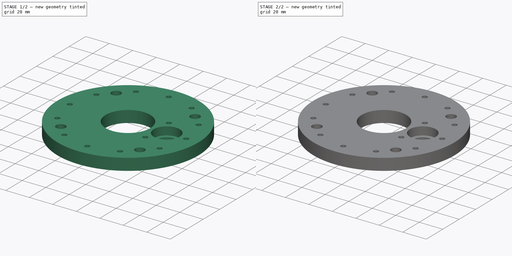
[diagram: build sequence overview — one tinted view per stage of 2, left to right]
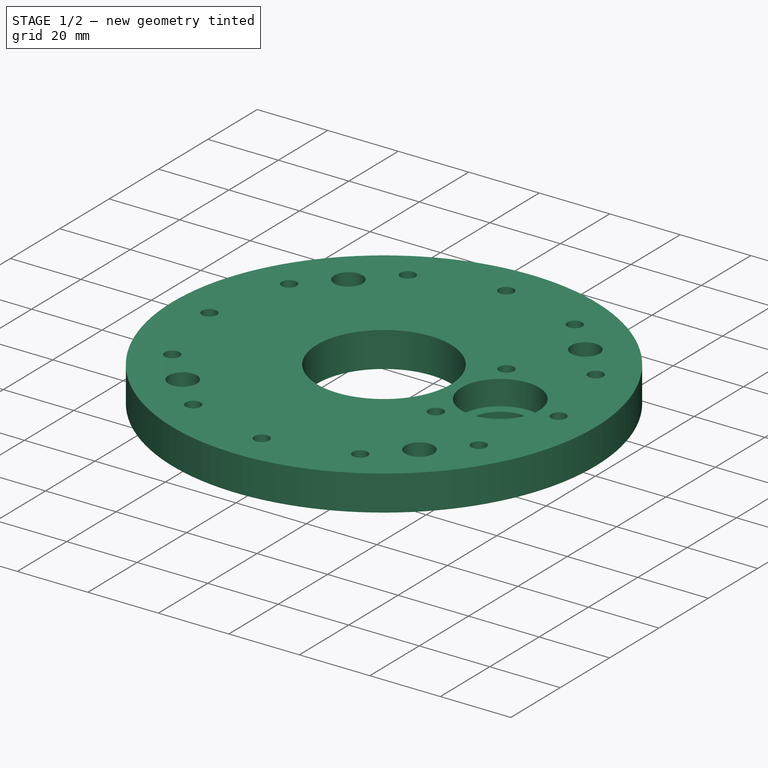
[diagram: stage 1 of 2 — iso view after this stage's code; geometry added in this stage tinted green]
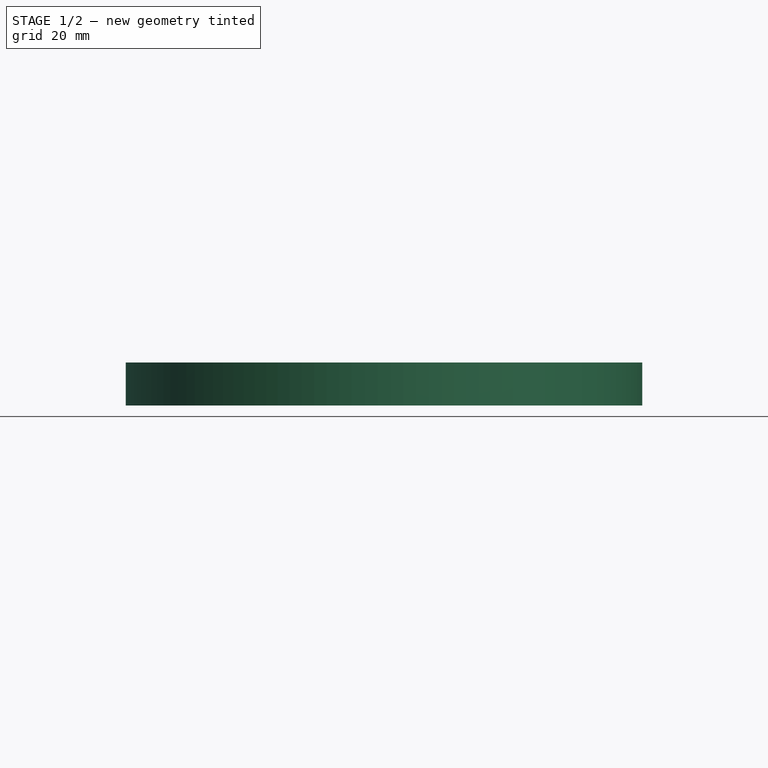
[diagram: stage 1 of 2 — front view after this stage's code; geometry added in this stage tinted green]
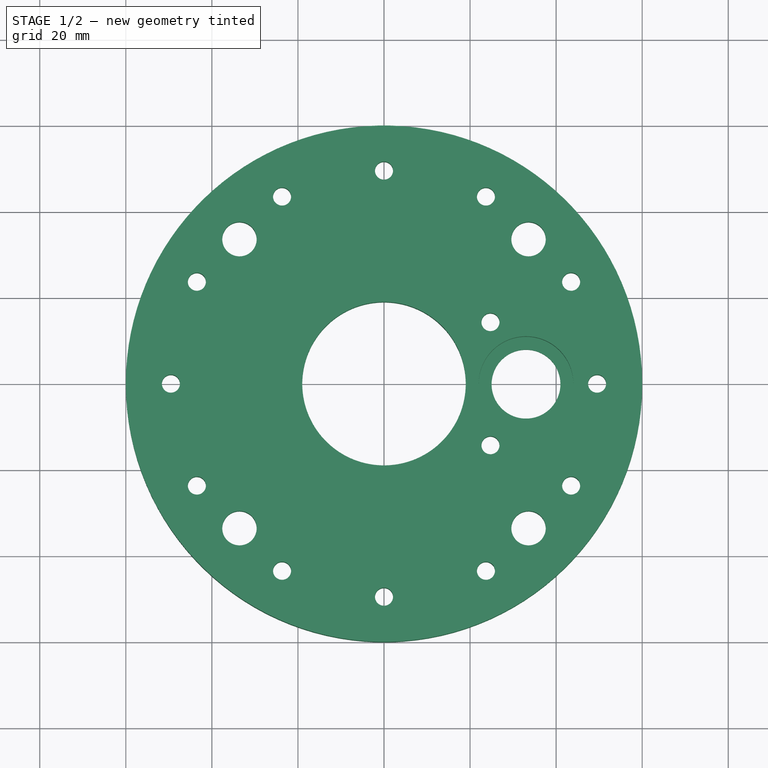
[diagram: stage 1 of 2 — top view after this stage's code; geometry added in this stage tinted green]
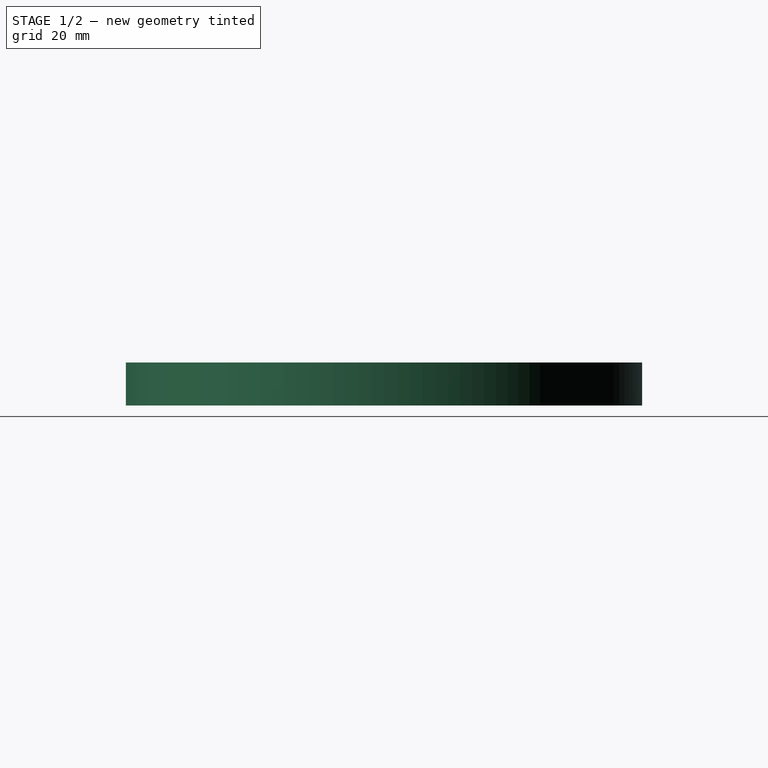
[diagram: stage 1 of 2 — right view after this stage's code; geometry added in this stage tinted green]
FCSTD DOCUMENT  (FreeCAD 0.19R24276 (Git))
Label: Z-axis_bottom_plate
License: All rights reserved
LicenseURL: http://en.wikipedia.org/wiki/All_rights_reserved
objects: Sketcher::SketchObject×2, PartDesign::Pad×1, PartDesign::Pocket×1, PartDesign::Chamfer×1, PartDesign::Body×1, Part::Part2DObjectPython×1
note: 10 computed .brp shape members not serialized (recipe doc carries the construction recipe); baked Part::Feature solids carry a one-line shape summary decoded from their .brp

FEATURE [Sketcher::SketchObject] Sketch
  FullyConstrained = true
  MapMode = 5
  Support = -> [XY_Plane]
  sketch-geometry (36):
    g0: Circle CenterX=24.74 CenterY=14.3067 CenterZ=0 NormalX=0 NormalY=0 NormalZ=1 AngleXU=0 Radius=2.1
    g1: Circle CenterX=24.74 CenterY=-14.3067 CenterZ=0 NormalX=0 NormalY=0 NormalZ=1 AngleXU=0 Radius=2.1
    g2: LineSegment StartX=24.74 StartY=14.3067 StartZ=0 EndX=33 EndY=0 EndZ=0
    g3: LineSegment StartX=33 StartY=0 StartZ=0 EndX=24.74 EndY=-14.3067 EndZ=0
    g4: LineSegment StartX=33 StartY=0 StartZ=0 EndX=49.52 EndY=0 EndZ=0
    g5: Circle CenterX=0 CenterY=0 CenterZ=0 NormalX=0 NormalY=0 NormalZ=1 AngleXU=0 Radius=19
    g6: Circle CenterX=33 CenterY=0 CenterZ=0 NormalX=0 NormalY=0 NormalZ=1 AngleXU=0 Radius=8
    g7: Circle CenterX=49.52 CenterY=0 CenterZ=0 NormalX=0 NormalY=0 NormalZ=1 AngleXU=0 Radius=2.1
    g8: LineSegment StartX=-33.5876 StartY=-33.5876 StartZ=0 EndX=33.5876 EndY=-33.5876 EndZ=0
    g9: LineSegment StartX=33.5876 StartY=-33.5876 StartZ=0 EndX=33.5876 EndY=33.5876 EndZ=0
    g10: LineSegment StartX=33.5876 StartY=33.5876 StartZ=0 EndX=-33.5876 EndY=33.5876 EndZ=0
    g11: LineSegment StartX=-33.5876 StartY=33.5876 StartZ=0 EndX=-33.5876 EndY=-33.5876 EndZ=0
    g12: Circle CenterX=-33.5876 CenterY=33.5876 CenterZ=0 NormalX=0 NormalY=0 NormalZ=1 AngleXU=0 Radius=4
    g13: Circle CenterX=-33.5876 CenterY=-33.5876 CenterZ=0 NormalX=0 NormalY=0 NormalZ=1 AngleXU=0 Radius=4
    g14: Circle CenterX=33.5876 CenterY=-33.5876 CenterZ=0 NormalX=0 NormalY=0 NormalZ=1 AngleXU=0 Radius=4
    g15: Circle CenterX=33.5876 CenterY=33.5876 CenterZ=0 NormalX=0 NormalY=0 NormalZ=1 AngleXU=0 Radius=4
    g16: LineSegment StartX=-43.4871 StartY=-23.6881 StartZ=0 EndX=-23.6881 EndY=-43.4871 EndZ=0
    g17: LineSegment StartX=-23.6881 StartY=-43.4871 StartZ=0 EndX=43.4871 EndY=23.6881 EndZ=0
    g18: LineSegment StartX=43.4871 StartY=23.6881 StartZ=0 EndX=23.6881 EndY=43.4871 EndZ=0
    g19: LineSegment StartX=23.6881 StartY=43.4871 StartZ=0 EndX=-43.4871 EndY=-23.6881 EndZ=0
    g20: Circle CenterX=0 CenterY=0 CenterZ=0 NormalX=0 NormalY=0 NormalZ=1 AngleXU=0 Radius=60
    g21: Circle CenterX=-49.52 CenterY=0 CenterZ=0 NormalX=0 NormalY=0 NormalZ=1 AngleXU=0 Radius=2.1
    g22: Circle CenterX=0 CenterY=49.52 CenterZ=0 NormalX=0 NormalY=0 NormalZ=1 AngleXU=0 Radius=2.1
    g23: Circle CenterX=0 CenterY=-49.52 CenterZ=0 NormalX=0 NormalY=0 NormalZ=1 AngleXU=0 Radius=2.1
    g24: LineSegment StartX=-43.4871 StartY=23.6881 StartZ=0 EndX=-23.6881 EndY=43.4871 EndZ=0
    g25: LineSegment StartX=-23.6881 StartY=43.4871 StartZ=0 EndX=43.4871 EndY=-23.6881 EndZ=0
    g26: LineSegment StartX=43.4871 StartY=-23.6881 StartZ=0 EndX=23.6881 EndY=-43.4871 EndZ=0
    g27: LineSegment StartX=23.6881 StartY=-43.4871 StartZ=0 EndX=-43.4871 EndY=23.6881 EndZ=0
    g28: Circle CenterX=-43.4871 CenterY=23.6881 CenterZ=0 NormalX=0 NormalY=0 NormalZ=1 AngleXU=0 Radius=2.1
    g29: Circle CenterX=-23.6881 CenterY=43.4871 CenterZ=0 NormalX=0 NormalY=0 NormalZ=1 AngleXU=0 Radius=2.1
    g30: Circle CenterX=23.6881 CenterY=-43.4871 CenterZ=0 NormalX=0 NormalY=0 NormalZ=1 AngleXU=0 Radius=2.1
    g31: Circle CenterX=43.4871 CenterY=-23.6881 CenterZ=0 NormalX=0 NormalY=0 NormalZ=1 AngleXU=0 Radius=2.1
    g32: Circle CenterX=23.6881 CenterY=43.4871 CenterZ=0 NormalX=0 NormalY=0 NormalZ=1 AngleXU=0 Radius=2.1
    g33: Circle CenterX=43.4871 CenterY=23.6881 CenterZ=0 NormalX=0 NormalY=0 NormalZ=1 AngleXU=0 Radius=2.1
    g34: Circle CenterX=-43.4871 CenterY=-23.6881 CenterZ=0 NormalX=0 NormalY=0 NormalZ=1 AngleXU=0 Radius=2.1
    g35: Circle CenterX=-23.6881 CenterY=-43.4871 CenterZ=0 NormalX=0 NormalY=0 NormalZ=1 AngleXU=0 Radius=2.1
  constraints (88):
    c: Equal(g0,g1)
    c: Radius(g1) = 2.1
    c: Coincident(g2,g3)
    c: Angle(g2,g3) = 2.0944
    c: Coincident(g2,g4)
    c: Coincident(g3,g1)
    c: Coincident(g0,g2)
    c: Angle(g3,g4) = 2.0944
    c: Radius(g5) = 19
    c: Radius(g6) = 8
    c: DistanceX(g6) = 33
    c: PointOnObject(g6,g-1)
    c: Equal(g2,g4)
    c: Equal(g3,g4)
    c: Coincident(g2,g6)
    c: Coincident(g7,g4)
    c: DistanceX(g7) = 49.52
    c: Equal(g7,g0)
    c: PointOnObject(g7,g-1)
    c: Coincident(g8,g9)
    c: Coincident(g9,g10)
    c: Coincident(g10,g11)
    c: Coincident(g11,g8)
    c: Horizontal(g8)
    c: Horizontal(g10)
    c: Vertical(g9)
    c: Vertical(g11)
    c: Equal(g12,g15)
    c: Equal(g15,g13)
    c: Equal(g13,g14)
    c: Radius(g15) = 4
    c: Coincident(g13,g8)
    c: Coincident(g9,g15)
    c: Coincident(g12,g10)
    c: Equal(g10,g11)
    c: Coincident(g17,g18)
    c: Coincident(g18,g19)
    c: Coincident(g16,g19)
    c: PointOnObject(g15,g18)
    c: PointOnObject(g13,g16)
    c: Coincident(g16,g17)
    c: Perpendicular(g18,g19)
    c: Perpendicular(g17,g16)
    c: Perpendicular(g16,g19)
    c: Distance(g16,g13) = 14
    c: Distance(g16) = 28
    c: Distance(g17,g15) = 14
    c: Radius(g20) = 60
    c: Coincident(g5,g20)
    c: Coincident(g5,g-1)
    c: Symmetric(g13,g15,g5)
    c: Coincident(g8,g14)
    c: Distance(g5,g15) = 47.5
    c: Symmetric(g21,g7,g5)
    c: Equal(g21,g7)
    c: Symmetric(g23,g22,g5)
    c: Equal(g23,g21)
    c: Equal(g21,g22)
    c: DistanceY(g22) = 49.52
    c: PointOnObject(g23,g-2)
    c: Coincident(g24,g25)
    c: Coincident(g25,g26)
    c: Coincident(g26,g27)
    c: Coincident(g27,g24)
    c: Perpendicular(g27,g24)
    c: Perpendicular(g25,g24)
    c: Perpendicular(g27,g26)
    c: PointOnObject(g14,g26)
    c: Distance(g26,g14) = 14
    c: Distance(g26) = 28
    c: PointOnObject(g12,g24)
    c: Distance(g12,g24) = 14
    c: Equal(g31,g30)
    c: Equal(g30,g28)
    c: Equal(g28,g29)
    c: Equal(g29,g21)
    c: Coincident(g24,g28)
    c: Coincident(g29,g24)
    c: Coincident(g30,g26)
    c: Coincident(g25,g31)
    c: Equal(g35,g34)
    c: Equal(g34,g32)
    c: Equal(g32,g33)
    c: Equal(g33,g22)
    c: Coincident(g32,g18)
    c: Coincident(g17,g33)
    c: Coincident(g34,g16)
    c: Coincident(g35,g16)
FEATURE [PartDesign::Pad] Pad
  Direction = (1,1,1)
  Length = 10
  Length2 = 100
  Profile = -> Sketch
  Type = 0
FEATURE [Sketcher::SketchObject] Sketch001
  FullyConstrained = true
  MapMode = 5
  Placement = pos=(0,0,10) rot=(0,0,1;0rad)
  Support = -> [Pad]
  sketch-geometry (1):
    g0: Circle CenterX=33 CenterY=0 CenterZ=0 NormalX=0 NormalY=0 NormalZ=1 AngleXU=0 Radius=11
  constraints (3):
    c: PointOnObject(g0,g-1)
    c: DistanceX(g0) = 33
    c: Radius(g0) = 11
FEATURE [PartDesign::Pocket] Pocket
  BaseFeature = -> Pad
  Length = 7
  Length2 = 100
  Profile = -> Sketch001
  Type = 0
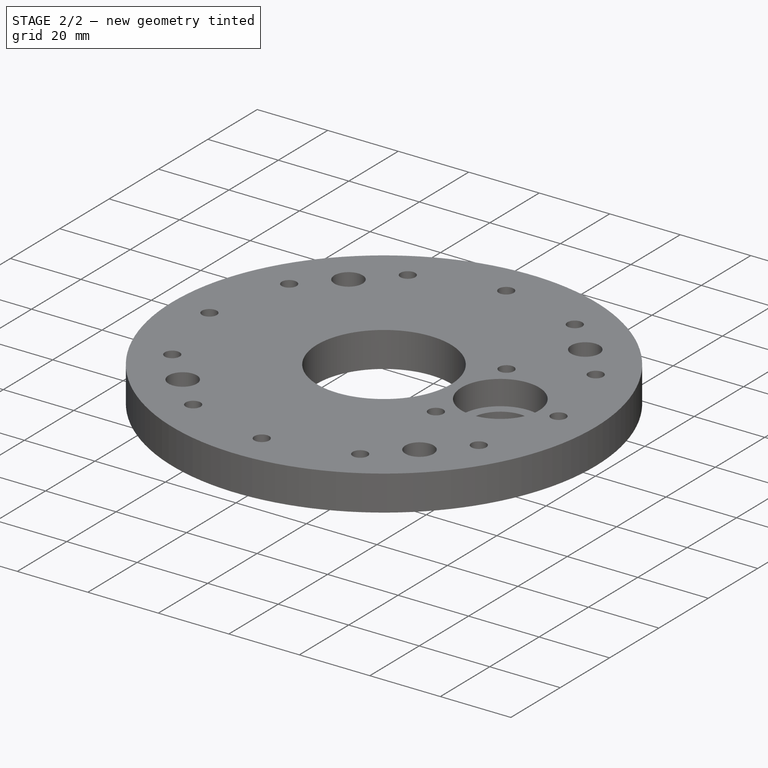
[diagram: stage 2 of 2 — iso view after this stage's code; geometry added in this stage tinted green]
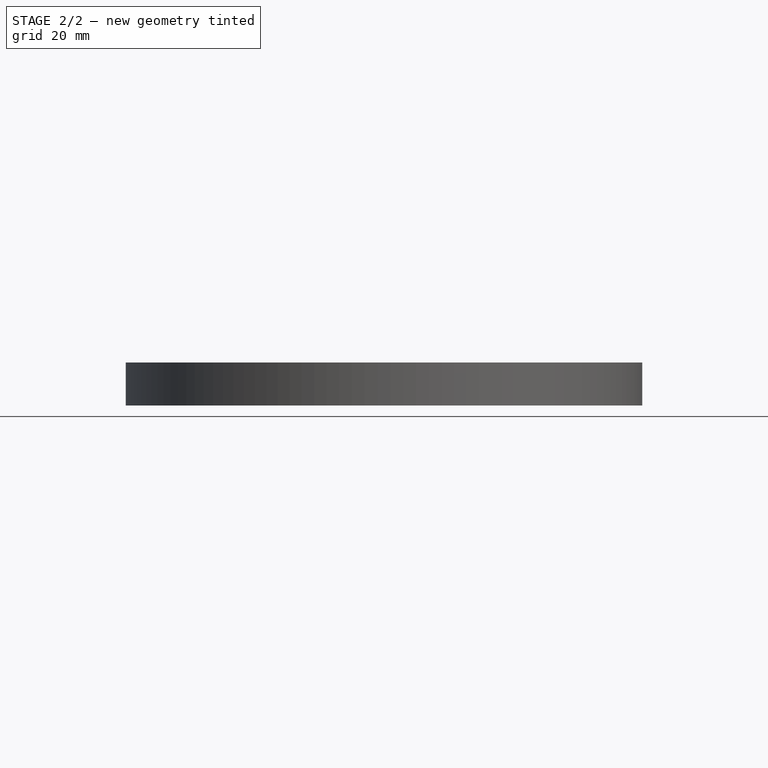
[diagram: stage 2 of 2 — front view after this stage's code; geometry added in this stage tinted green]
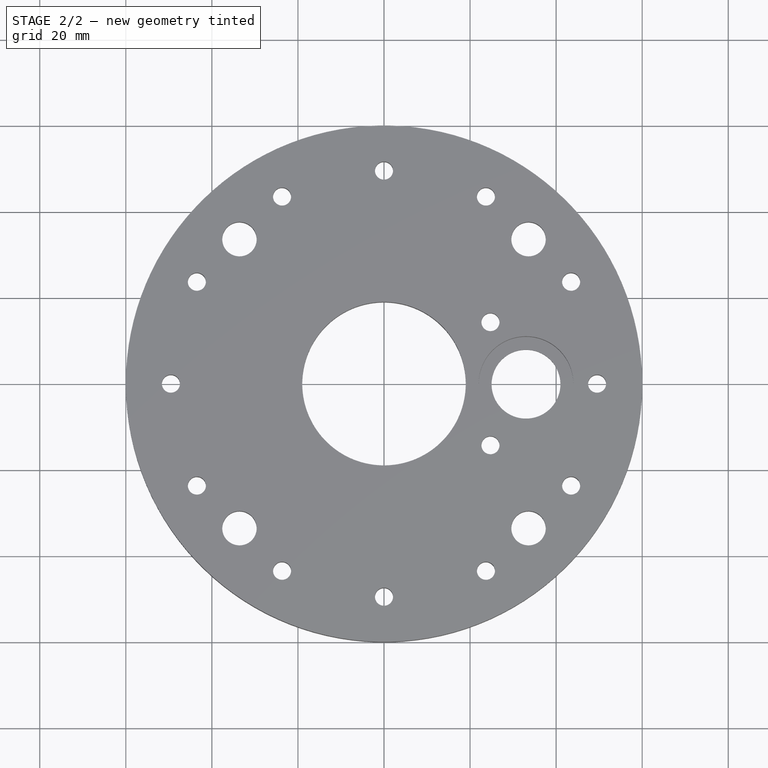
[diagram: stage 2 of 2 — top view after this stage's code; geometry added in this stage tinted green]
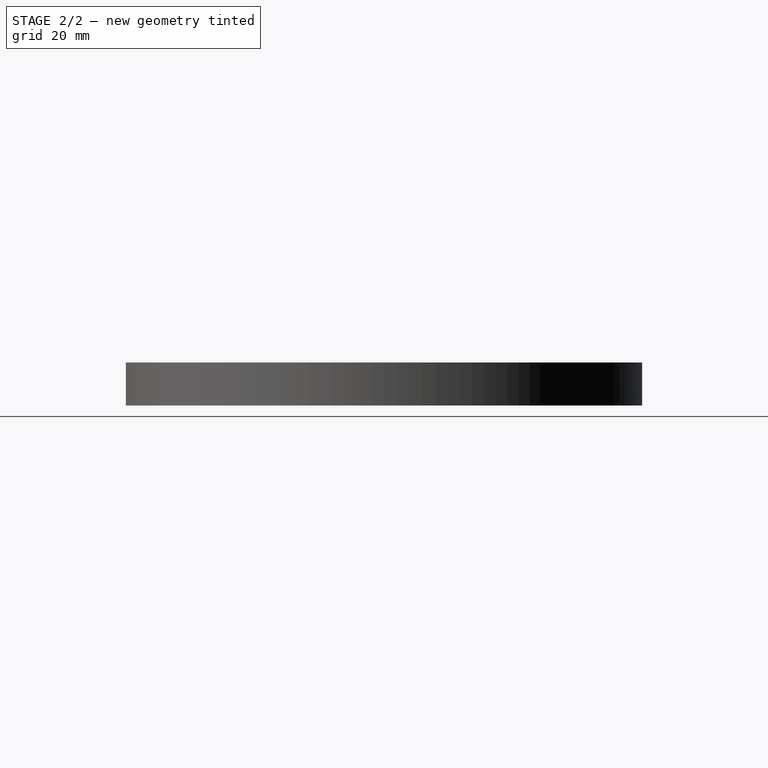
[diagram: stage 2 of 2 — right view after this stage's code; geometry added in this stage tinted green]
FEATURE [PartDesign::Chamfer] Chamfer
  Angle = 45
  Base = -> Pocket [Edge23,Edge18]
  BaseFeature = -> Pocket
  ChamferType = 0
  FlipDirection = false
  Size = 2.2
  Size2 = 1
  SupportTransform = false
FEATURE [PartDesign::Body] Body
  Group = -> [Sketch,Pad,Sketch001,Pocket,Chamfer]
  Origin = -> Origin
  Tip = -> Chamfer
FEATURE [Part::Part2DObjectPython] Shape2DView  # Draft 2D object (typed FeaturePython)
  Base = -> Chamfer
  FaceNumbers = [23]
  FuseArch = false
  HiddenLines = false
  InPlace = true
  Projection = (0,0,1)
  ProjectionMode = 0
  SegmentLength = 0.05
  Tessellation = false
  VisibleOnly = false
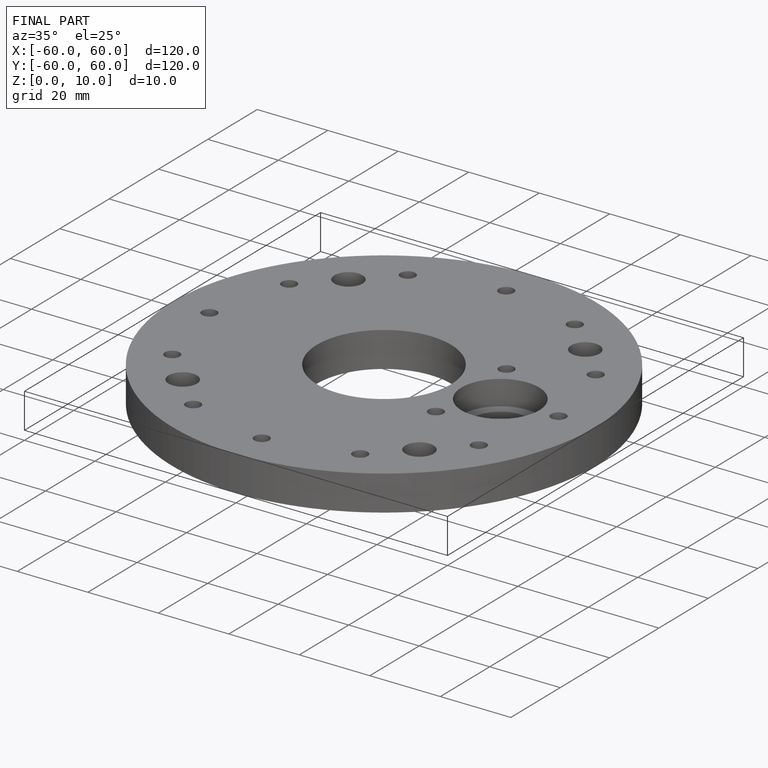
[diagram: finished part — iso view with bounding-box wireframe]
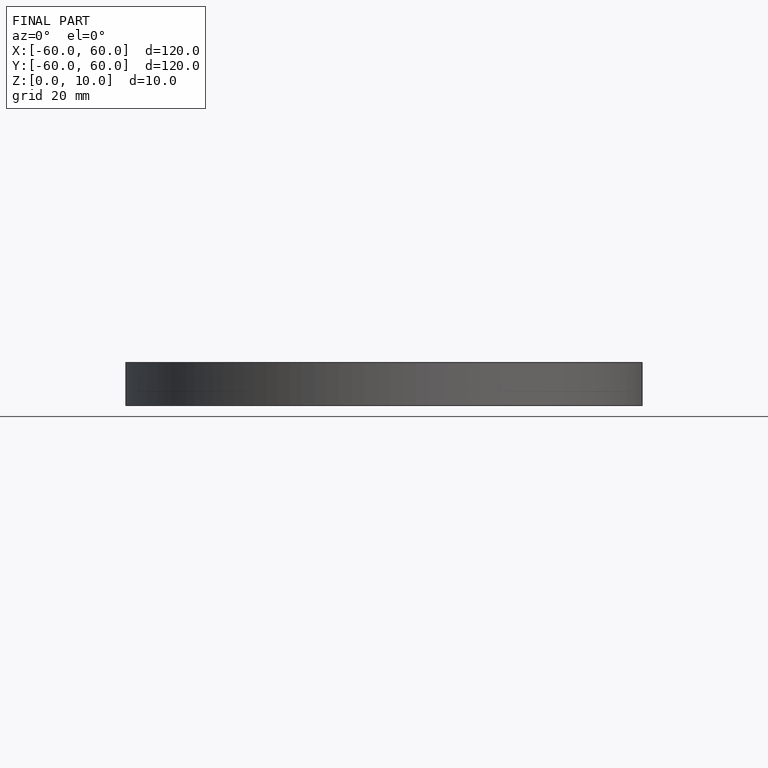
[diagram: finished part — front view with bounding-box wireframe]
